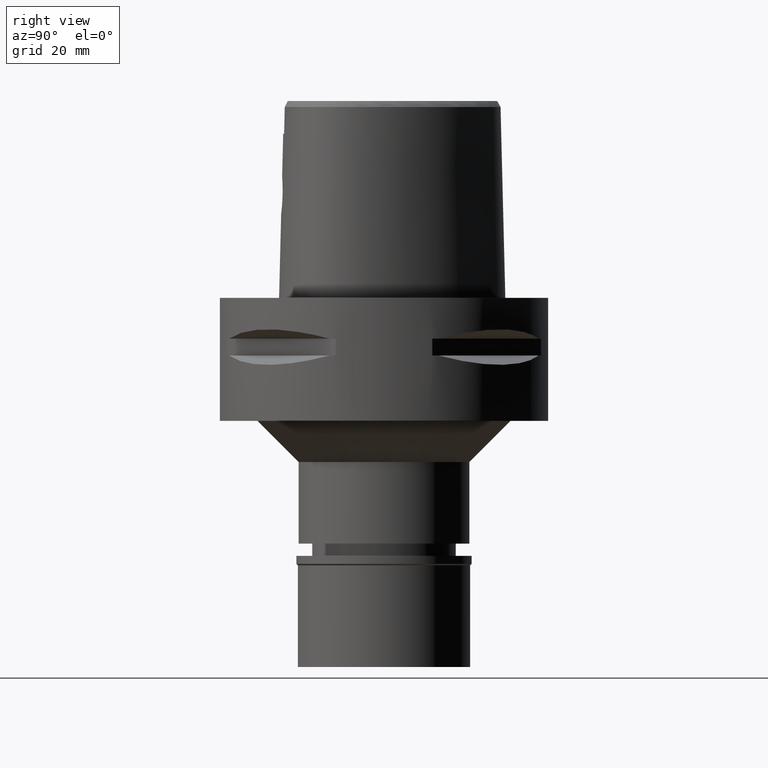
[diagram: clean part render]
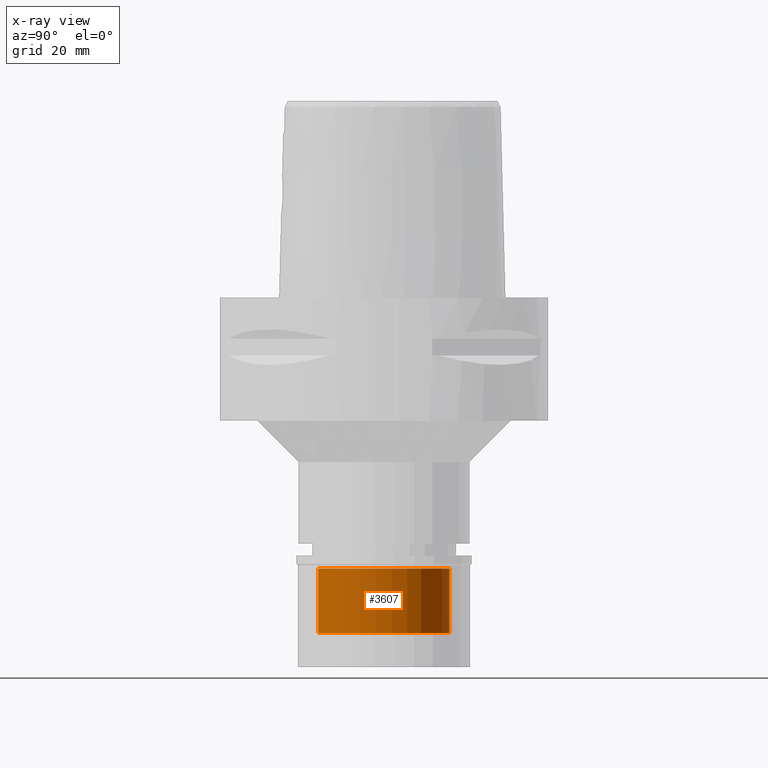
[diagram: x-ray — body ghosted, one internal face saturated and labeled with its STEP entity id]
A machine part, right view, then the same camera in x-ray: the body is ghosted and one INTERNAL B-rep face — a face not visible from any outside direction — is saturated and labeled: STEP entity #3607.
In plain terms, the highlighted cylindrical surface (partial cylindrical patch) has radius 16 mm, axis along (0, 0, -1).
Its self-contained STEP definition (entity closure, byte-faithful):
#305 = CARTESIAN_POINT ( 'NONE',  ( 0.0000000000000000000, 16.00000000000000000, -18.89999999999999858 ) ) ;
#361 = CYLINDRICAL_SURFACE ( 'NONE', #1215, 16.00000000000000000 ) ;
#397 = VECTOR ( 'NONE', #407, 1000.000000000000000 ) ;
#405 = EDGE_CURVE ( 'NONE', #3835, #3877, #2519, .T. ) ;
#407 = DIRECTION ( 'NONE',  ( 0.0000000000000000000, 0.0000000000000000000, 1.000000000000000000 ) ) ;
#726 = AXIS2_PLACEMENT_3D ( 'NONE', #4040, #2196, #1815 ) ;
#785 = CARTESIAN_POINT ( 'NONE',  ( 0.0000000000000000000, 0.0000000000000000000, -18.89999999999999858 ) ) ;
#1095 = FACE_OUTER_BOUND ( 'NONE', #4821, .T. ) ;
#1164 = LINE ( 'NONE', #305, #397 ) ;
#1166 = CARTESIAN_POINT ( 'NONE',  ( 0.0000000000000000000, -16.00000000000000000, -3.100000000000000089 ) ) ;
#1215 = AXIS2_PLACEMENT_3D ( 'NONE', #2295, #3870, #3847 ) ;
#1376 = VECTOR ( 'NONE', #4618, 1000.000000000000000 ) ;
#1485 = LINE ( 'NONE', #3038, #1376 ) ;
#1526 = VERTEX_POINT ( 'NONE', #3982 ) ;
#1537 = ORIENTED_EDGE ( 'NONE', *, *, #1898, .T. ) ;
#1715 = EDGE_CURVE ( 'NONE', #1526, #3835, #1485, .T. ) ;
#1815 = DIRECTION ( 'NONE',  ( 0.0000000000000000000, -1.000000000000000000, 0.0000000000000000000 ) ) ;
#1898 = EDGE_CURVE ( 'NONE', #2407, #1526, #2922, .T. ) ;
#1921 = EDGE_CURVE ( 'NONE', #2407, #3877, #1164, .T. ) ;
#2196 = DIRECTION ( 'NONE',  ( 0.0000000000000000000, 0.0000000000000000000, 1.000000000000000000 ) ) ;
#2295 = CARTESIAN_POINT ( 'NONE',  ( 0.0000000000000000000, 0.0000000000000000000, 0.0000000000000000000 ) ) ;
#2344 = AXIS2_PLACEMENT_3D ( 'NONE', #785, #4672, #4254 ) ;
#2407 = VERTEX_POINT ( 'NONE', #3258 ) ;
#2519 = CIRCLE ( 'NONE', #726, 16.00000000000000000 ) ;
#2922 = CIRCLE ( 'NONE', #2344, 16.00000000000000000 ) ;
#3038 = CARTESIAN_POINT ( 'NONE',  ( 0.0000000000000000000, -16.00000000000000000, -18.89999999999999858 ) ) ;
#3258 = CARTESIAN_POINT ( 'NONE',  ( 0.0000000000000000000, 16.00000000000000000, -18.89999999999999858 ) ) ;
#3607 = ADVANCED_FACE ( 'NONE', ( #1095 ), #361, .F. ) ;
#3757 = ORIENTED_EDGE ( 'NONE', *, *, #405, .T. ) ;
#3835 = VERTEX_POINT ( 'NONE', #1166 ) ;
#3847 = DIRECTION ( 'NONE',  ( 0.0000000000000000000, -1.000000000000000000, 0.0000000000000000000 ) ) ;
#3870 = DIRECTION ( 'NONE',  ( 0.0000000000000000000, 0.0000000000000000000, -1.000000000000000000 ) ) ;
#3877 = VERTEX_POINT ( 'NONE', #4980 ) ;
#3982 = CARTESIAN_POINT ( 'NONE',  ( 0.0000000000000000000, -16.00000000000000000, -18.89999999999999858 ) ) ;
#4040 = CARTESIAN_POINT ( 'NONE',  ( 0.0000000000000000000, 0.0000000000000000000, -3.100000000000000089 ) ) ;
#4254 = DIRECTION ( 'NONE',  ( 0.0000000000000000000, 1.000000000000000000, 0.0000000000000000000 ) ) ;
#4440 = ORIENTED_EDGE ( 'NONE', *, *, #1921, .F. ) ;
#4618 = DIRECTION ( 'NONE',  ( 0.0000000000000000000, 0.0000000000000000000, 1.000000000000000000 ) ) ;
#4672 = DIRECTION ( 'NONE',  ( 0.0000000000000000000, 0.0000000000000000000, -1.000000000000000000 ) ) ;
#4821 = EDGE_LOOP ( 'NONE', ( #1537, #4873, #3757, #4440 ) ) ;
#4873 = ORIENTED_EDGE ( 'NONE', *, *, #1715, .T. ) ;
#4980 = CARTESIAN_POINT ( 'NONE',  ( 0.0000000000000000000, 16.00000000000000000, -3.100000000000000089 ) ) ;